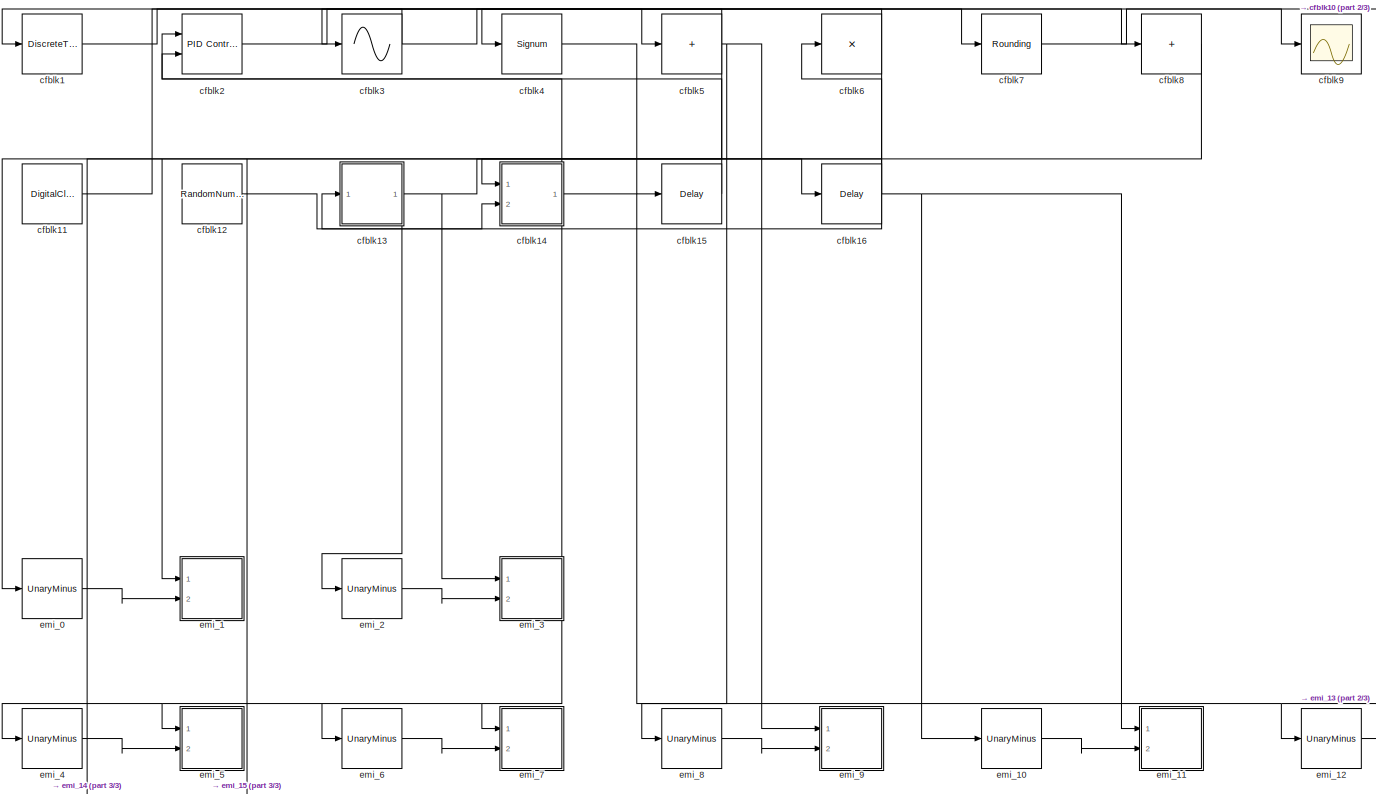
[diagram: root canvas - part 1/3, most of the canvas]
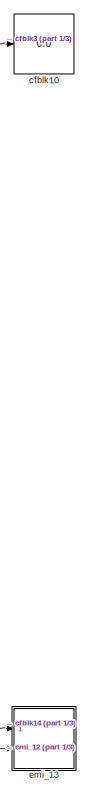
[diagram: root canvas - part 2/3, right side, full height]
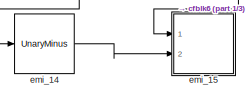
[diagram: root canvas - part 3/3, bottom left region]
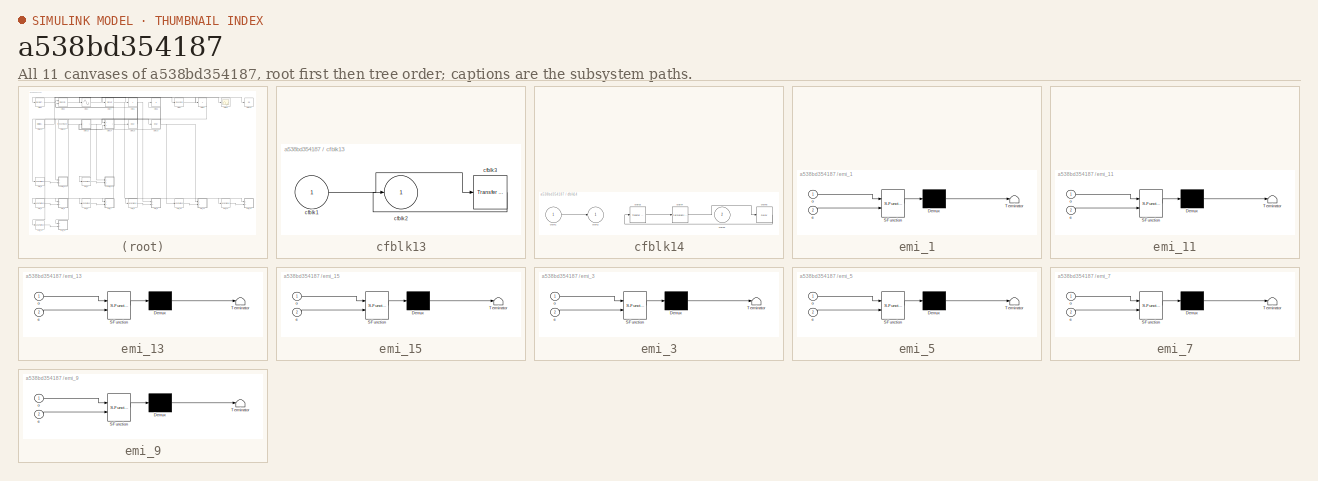
[diagram: thumbnail index - all 11 canvases of the model, root first then tree order]
MODEL slx_a538bd354187
KIND model
CONFIG AbsTol = auto
CONFIG EnableMultiTasking = off
CONFIG FixedStep = auto
CONFIG MaxStep = auto
CONFIG MinStep = auto
CONFIG RelTol = 1e-3
CONFIG SampleTimeConstraint = Unconstrained
CONFIG SolverName = VariableStepAuto
CONFIG StartTime = 0.0
CONFIG StopTime = 10.0
BLOCK [DiscreteTransferFcn] cfblk1
  InputPortMap = u0
  Ports = [1, 1]
  SampleTime = 1
BLOCK [Display] cfblk10
  Decimation = 1
  Ports = [1]
BLOCK [DigitalClock] cfblk11
BLOCK [RandomNumber] cfblk12
  Mean = [-91757.722455]
  SampleTime = 0.1
  Seed = [931341017.000000]
  Variance = [72797.748445]
BLOCK [SubSystem] cfblk13
  Ports = [1, 1]
  RequestExecContextInheritance = off
BLOCK [Inport] cfblk13/cfblk1
BLOCK [Outport] cfblk13/cfblk2
BLOCK [Reference] cfblk13/cfblk3  REF=simulink/Discrete/Transfer Fcn
Real Zero
  Ports = [1, 1]
  SourceBlock = simulink/Discrete/Transfer Fcn\nReal Zero
  SourceProductBaseCode = SL
  SourceType = Transfer Fcn Real Zero
BLOCK [SubSystem] cfblk14
  Ports = [2, 1]
  RequestExecContextInheritance = off
BLOCK [Inport] cfblk14/cfblk1
BLOCK [Outport] cfblk14/cfblk2
BLOCK [Reference] cfblk14/cfblk3  REF=simulink/Discrete/Transfer Fcn
First Order
  Ports = [1, 1]
  SourceBlock = simulink/Discrete/Transfer Fcn\nFirst Order
  SourceProductBaseCode = SL
  SourceType = First Order Transfer Fcn
BLOCK [PermuteDimensions] cfblk14/cfblk4
BLOCK [Inport] cfblk14/cfblk5
  Port = 2
BLOCK [Delay] cfblk14/cfblk6
  InputPortMap = u0
  Ports = [1, 1]
  SampleTime = 1
BLOCK [Delay] cfblk15
  InputPortMap = u0
  Ports = [1, 1]
  SampleTime = 1
BLOCK [Delay] cfblk16
  InputPortMap = u0
  Ports = [1, 1]
  SampleTime = 1
BLOCK [Reference] cfblk2  REF=slpidlib/PID Controller (2DOF)
  Ports = [2, 1]
  SourceBlock = slpidlib/PID Controller (2DOF)
  SourceProductBaseCode = SL
  SourceType = PID 2dof
BLOCK [Sin] cfblk3
  Ports = [1, 1]
  SampleTime = 0
  TimeSource = Use external signal
BLOCK [Signum] cfblk4
BLOCK [Sum] cfblk5
  IconShape = rectangular
  Inputs = +
  OutDataTypeStr = double
  Ports = [1, 1]
BLOCK [Product] cfblk6
  Inputs = *
  OutDataTypeStr = double
  Ports = [1, 1]
BLOCK [Rounding] cfblk7
BLOCK [Sum] cfblk8
  IconShape = rectangular
  Inputs = +
  OutDataTypeStr = double
  Ports = [1, 1]
BLOCK [Scope] cfblk9
  Floating = off
  NumInputPorts = 1
  Ports = [1]
  ScopeSpecificationString = Simulink.scopes.TimeScopeBlockCfg('CurrentConfiguration', extmgr.ConfigurationSet(extmgr.Configuration('Core','General UI',true),extmgr.Configuration('Core','Source UI',true),extmgr.Configuration('Sources','WiredSimulink',true),extmgr.Configuration('Visuals','Time Domain',true),extmgr.Configuration('Tools','Plot Navigation',true),extmgr.Configuration('Tools','Measurements',true)),'Version','2021b'...<+1ch>
BLOCK [UnaryMinus] emi_0
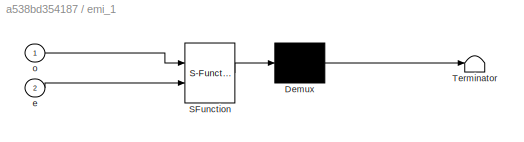
BLOCK [SubSystem] emi_1
  ErrorFcn = Stateflow.Translate.translate
  PermitHierarchicalResolution = ExplicitOnly
  Ports = [2]
  RequestExecContextInheritance = off
  SFBlockType = MATLAB Function
  TreatAsAtomicUnit = on
BLOCK [Demux] emi_1/ Demux 
  Outputs = 1
  Ports = [1, 1]
BLOCK [S-Function] emi_1/ SFunction 
  EnableBusSupport = on
  FunctionName = sf_sfun
  PortCounts = [2 1]
  Ports = [2, 1]
  SFcnIsStateOwnerBlock = off
  SFunctionDeploymentMode = off
  Tag = Stateflow S-Function 2
BLOCK [Terminator] emi_1/ Terminator 
BLOCK [Inport] emi_1/e
  Port = 2
BLOCK [Inport] emi_1/o
BLOCK [UnaryMinus] emi_10
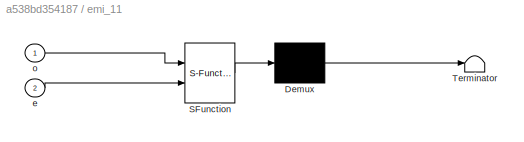
BLOCK [SubSystem] emi_11
  ErrorFcn = Stateflow.Translate.translate
  PermitHierarchicalResolution = ExplicitOnly
  Ports = [2]
  RequestExecContextInheritance = off
  SFBlockType = MATLAB Function
  TreatAsAtomicUnit = on
BLOCK [Demux] emi_11/ Demux 
  Outputs = 1
  Ports = [1, 1]
BLOCK [S-Function] emi_11/ SFunction 
  EnableBusSupport = on
  FunctionName = sf_sfun
  PortCounts = [2 1]
  Ports = [2, 1]
  SFcnIsStateOwnerBlock = off
  SFunctionDeploymentMode = off
  Tag = Stateflow S-Function 6
BLOCK [Terminator] emi_11/ Terminator 
BLOCK [Inport] emi_11/e
  Port = 2
BLOCK [Inport] emi_11/o
BLOCK [UnaryMinus] emi_12
BLOCK [SubSystem] emi_13
  ErrorFcn = Stateflow.Translate.translate
  PermitHierarchicalResolution = ExplicitOnly
  Ports = [2]
  RequestExecContextInheritance = off
  SFBlockType = MATLAB Function
  TreatAsAtomicUnit = on
BLOCK [Demux] emi_13/ Demux 
  Outputs = 1
  Ports = [1, 1]
BLOCK [S-Function] emi_13/ SFunction 
  EnableBusSupport = on
  FunctionName = sf_sfun
  PortCounts = [2 1]
  Ports = [2, 1]
  SFcnIsStateOwnerBlock = off
  SFunctionDeploymentMode = off
  Tag = Stateflow S-Function 7
BLOCK [Terminator] emi_13/ Terminator 
BLOCK [Inport] emi_13/e
  Port = 2
BLOCK [Inport] emi_13/o
BLOCK [UnaryMinus] emi_14
BLOCK [SubSystem] emi_15
  ErrorFcn = Stateflow.Translate.translate
  PermitHierarchicalResolution = ExplicitOnly
  Ports = [2]
  RequestExecContextInheritance = off
  SFBlockType = MATLAB Function
  TreatAsAtomicUnit = on
BLOCK [Demux] emi_15/ Demux 
  Outputs = 1
  Ports = [1, 1]
BLOCK [S-Function] emi_15/ SFunction 
  EnableBusSupport = on
  FunctionName = sf_sfun
  PortCounts = [2 1]
  Ports = [2, 1]
  SFcnIsStateOwnerBlock = off
  SFunctionDeploymentMode = off
  Tag = Stateflow S-Function 8
BLOCK [Terminator] emi_15/ Terminator 
BLOCK [Inport] emi_15/e
  Port = 2
BLOCK [Inport] emi_15/o
BLOCK [UnaryMinus] emi_2
BLOCK [SubSystem] emi_3
  ErrorFcn = Stateflow.Translate.translate
  PermitHierarchicalResolution = ExplicitOnly
  Ports = [2]
  RequestExecContextInheritance = off
  SFBlockType = MATLAB Function
  TreatAsAtomicUnit = on
BLOCK [Demux] emi_3/ Demux 
  Outputs = 1
  Ports = [1, 1]
BLOCK [S-Function] emi_3/ SFunction 
  EnableBusSupport = on
  FunctionName = sf_sfun
  PortCounts = [2 1]
  Ports = [2, 1]
  SFcnIsStateOwnerBlock = off
  SFunctionDeploymentMode = off
  Tag = Stateflow S-Function 1
BLOCK [Terminator] emi_3/ Terminator 
BLOCK [Inport] emi_3/e
  Port = 2
BLOCK [Inport] emi_3/o
BLOCK [UnaryMinus] emi_4
BLOCK [SubSystem] emi_5
  ErrorFcn = Stateflow.Translate.translate
  PermitHierarchicalResolution = ExplicitOnly
  Ports = [2]
  RequestExecContextInheritance = off
  SFBlockType = MATLAB Function
  TreatAsAtomicUnit = on
BLOCK [Demux] emi_5/ Demux 
  Outputs = 1
  Ports = [1, 1]
BLOCK [S-Function] emi_5/ SFunction 
  EnableBusSupport = on
  FunctionName = sf_sfun
  PortCounts = [2 1]
  Ports = [2, 1]
  SFcnIsStateOwnerBlock = off
  SFunctionDeploymentMode = off
  Tag = Stateflow S-Function 3
BLOCK [Terminator] emi_5/ Terminator 
BLOCK [Inport] emi_5/e
  Port = 2
BLOCK [Inport] emi_5/o
BLOCK [UnaryMinus] emi_6
BLOCK [SubSystem] emi_7
  ErrorFcn = Stateflow.Translate.translate
  PermitHierarchicalResolution = ExplicitOnly
  Ports = [2]
  RequestExecContextInheritance = off
  SFBlockType = MATLAB Function
  TreatAsAtomicUnit = on
BLOCK [Demux] emi_7/ Demux 
  Outputs = 1
  Ports = [1, 1]
BLOCK [S-Function] emi_7/ SFunction 
  EnableBusSupport = on
  FunctionName = sf_sfun
  PortCounts = [2 1]
  Ports = [2, 1]
  SFcnIsStateOwnerBlock = off
  SFunctionDeploymentMode = off
  Tag = Stateflow S-Function 4
BLOCK [Terminator] emi_7/ Terminator 
BLOCK [Inport] emi_7/e
  Port = 2
BLOCK [Inport] emi_7/o
BLOCK [UnaryMinus] emi_8
BLOCK [SubSystem] emi_9
  ErrorFcn = Stateflow.Translate.translate
  PermitHierarchicalResolution = ExplicitOnly
  Ports = [2]
  RequestExecContextInheritance = off
  SFBlockType = MATLAB Function
  TreatAsAtomicUnit = on
BLOCK [Demux] emi_9/ Demux 
  Outputs = 1
  Ports = [1, 1]
BLOCK [S-Function] emi_9/ SFunction 
  EnableBusSupport = on
  FunctionName = sf_sfun
  PortCounts = [2 1]
  Ports = [2, 1]
  SFcnIsStateOwnerBlock = off
  SFunctionDeploymentMode = off
  Tag = Stateflow S-Function 5
BLOCK [Terminator] emi_9/ Terminator 
BLOCK [Inport] emi_9/e
  Port = 2
BLOCK [Inport] emi_9/o
LINE cfblk11:1 -> cfblk8:1
LINE cfblk12:1 -> cfblk14:2
LINE cfblk13/cfblk1:1 -> cfblk13/cfblk3:1
LINE cfblk13/cfblk3:1 -> cfblk13/cfblk2:1
NET cfblk13:1 -> cfblk16:1, emi_2:1, emi_3:1
LINE cfblk14/cfblk1:1 -> cfblk14/cfblk2:1
LINE cfblk14/cfblk3:1 -> cfblk14/cfblk4:1
LINE cfblk14/cfblk4:1 -> cfblk14/cfblk6:1
LINE cfblk14/cfblk6:1 -> cfblk14/cfblk3:1
NET cfblk14:1 -> cfblk2:1, emi_12:1, emi_13:1, emi_4:1, emi_5:1, emi_6:1, emi_7:1
LINE cfblk15:1 -> cfblk2:2
NET cfblk16:1 -> cfblk6:1, emi_10:1, emi_11:1
LINE cfblk1:1 -> cfblk7:1
LINE cfblk2:1 -> cfblk5:1
NET cfblk3:1 -> cfblk10:1, cfblk1:1
LINE cfblk4:1 -> cfblk15:1
NET cfblk5:1 -> cfblk4:1, emi_0:1, emi_1:1, emi_8:1, emi_9:1
NET cfblk6:1 -> cfblk13:1, cfblk3:1, emi_14:1, emi_15:1
LINE cfblk7:1 -> cfblk9:1
LINE cfblk8:1 -> cfblk14:1
LINE emi_0:1 -> emi_1:2
LINE emi_10:1 -> emi_11:2
LINE emi_12:1 -> emi_13:2
LINE emi_14:1 -> emi_15:2
LINE emi_2:1 -> emi_3:2
LINE emi_4:1 -> emi_5:2
LINE emi_6:1 -> emi_7:2
LINE emi_8:1 -> emi_9:2
note: NET lines group one-source signal fan-out (src -> all destinations, sorted); 1:1 wires keep LINE
CHART emi_1 states=1 transitions=1
  STATE_LABEL 'eML_blk_kernel()'
  STATE_LABEL "SCRIPT:\nfunction  fcn(o, e)\no_inv = o^-1;\ne_inv = e^-1;\n\nemsg = 'sampleModel386_pp_100_1/emi_1';\n \nif(o == e)\n    assert(o_inv == e_inv, [emsg ' ; o_inv~=e_inv']);\n    return;\nend\n \nif(o_inv > 0)\n    assert(e_inv < 0, [emsg ' ; e_inv>=0']);\nelse\n    assert(e_inv > 0, [emsg ' ; e_inv<=0']);\nend\n\n\n"
CHART emi_5 states=1 transitions=1
  STATE_LABEL 'eML_blk_kernel()'
  STATE_LABEL "SCRIPT:\nfunction  fcn(o, e)\no_inv = o^-1;\ne_inv = e^-1;\n\nemsg = 'sampleModel386_pp_100_1/emi_5';\n \nif(o == e)\n    assert(o_inv == e_inv, [emsg ' ; o_inv~=e_inv']);\n    return;\nend\n \nif(o_inv > 0)\n    assert(e_inv < 0, [emsg ' ; e_inv>=0']);\nelse\n    assert(e_inv > 0, [emsg ' ; e_inv<=0']);\nend\n\n\n"
CHART emi_7 states=1 transitions=1
  STATE_LABEL 'eML_blk_kernel()'
  STATE_LABEL "SCRIPT:\nfunction  fcn(o, e)\no_inv = o^-1;\ne_inv = e^-1;\n\nemsg = 'sampleModel386_pp_100_1/emi_7';\n \nif(o == e)\n    assert(o_inv == e_inv, [emsg ' ; o_inv~=e_inv']);\n    return;\nend\n \nif(o_inv > 0)\n    assert(e_inv < 0, [emsg ' ; e_inv>=0']);\nelse\n    assert(e_inv > 0, [emsg ' ; e_inv<=0']);\nend\n\n\n"
CHART emi_9 states=1 transitions=1
  STATE_LABEL 'eML_blk_kernel()'
  STATE_LABEL "SCRIPT:\nfunction  fcn(o, e)\no_inv = o^-1;\ne_inv = e^-1;\n\nemsg = 'sampleModel386_pp_100_1/emi_9';\n \nif(o == e)\n    assert(o_inv == e_inv, [emsg ' ; o_inv~=e_inv']);\n    return;\nend\n \nif(o_inv > 0)\n    assert(e_inv < 0, [emsg ' ; e_inv>=0']);\nelse\n    assert(e_inv > 0, [emsg ' ; e_inv<=0']);\nend\n\n\n"
CHART emi_11 states=1 transitions=1
  STATE_LABEL 'eML_blk_kernel()'
  STATE_LABEL "SCRIPT:\nfunction  fcn(o, e)\no_inv = o^-1;\ne_inv = e^-1;\n\nemsg = 'sampleModel386_pp_100_1/emi_11';\n \nif(o == e)\n    assert(o_inv == e_inv, [emsg ' ; o_inv~=e_inv']);\n    return;\nend\n \nif(o_inv > 0)\n    assert(e_inv < 0, [emsg ' ; e_inv>=0']);\nelse\n    assert(e_inv > 0, [emsg ' ; e_inv<=0']);\nend\n\n\n"
CHART emi_13 states=1 transitions=1
  STATE_LABEL 'eML_blk_kernel()'
  STATE_LABEL "SCRIPT:\nfunction  fcn(o, e)\no_inv = o^-1;\ne_inv = e^-1;\n\nemsg = 'sampleModel386_pp_100_1/emi_13';\n \nif(o == e)\n    assert(o_inv == e_inv, [emsg ' ; o_inv~=e_inv']);\n    return;\nend\n \nif(o_inv > 0)\n    assert(e_inv < 0, [emsg ' ; e_inv>=0']);\nelse\n    assert(e_inv > 0, [emsg ' ; e_inv<=0']);\nend\n\n\n"
CHART emi_15 states=1 transitions=1
  STATE_LABEL 'eML_blk_kernel()'
  STATE_LABEL "SCRIPT:\nfunction  fcn(o, e)\no_inv = o^-1;\ne_inv = e^-1;\n\nemsg = 'sampleModel386_pp_100_1/emi_15';\n \nif(o == e)\n    assert(o_inv == e_inv, [emsg ' ; o_inv~=e_inv']);\n    return;\nend\n \nif(o_inv > 0)\n    assert(e_inv < 0, [emsg ' ; e_inv>=0']);\nelse\n    assert(e_inv > 0, [emsg ' ; e_inv<=0']);\nend\n\n\n"
CHART emi_3 states=1 transitions=1
  STATE_LABEL 'eML_blk_kernel()'
  STATE_LABEL "SCRIPT:\nfunction  fcn(o, e)\no_inv = o^-1;\ne_inv = e^-1;\n\nemsg = 'sampleModel386_pp_100_1/emi_3';\n \nif(o == e)\n    assert(o_inv == e_inv, [emsg ' ; o_inv~=e_inv']);\n    return;\nend\n \nif(o_inv > 0)\n    assert(e_inv < 0, [emsg ' ; e_inv>=0']);\nelse\n    assert(e_inv > 0, [emsg ' ; e_inv<=0']);\nend\n\n\n"
CHART  states=0 transitions=0
CHART  states=0 transitions=0
CHART  states=0 transitions=0
CHART  states=0 transitions=0
CHART  states=0 transitions=0
CHART  states=0 transitions=0
CHART  states=0 transitions=0
CHART  states=0 transitions=0
